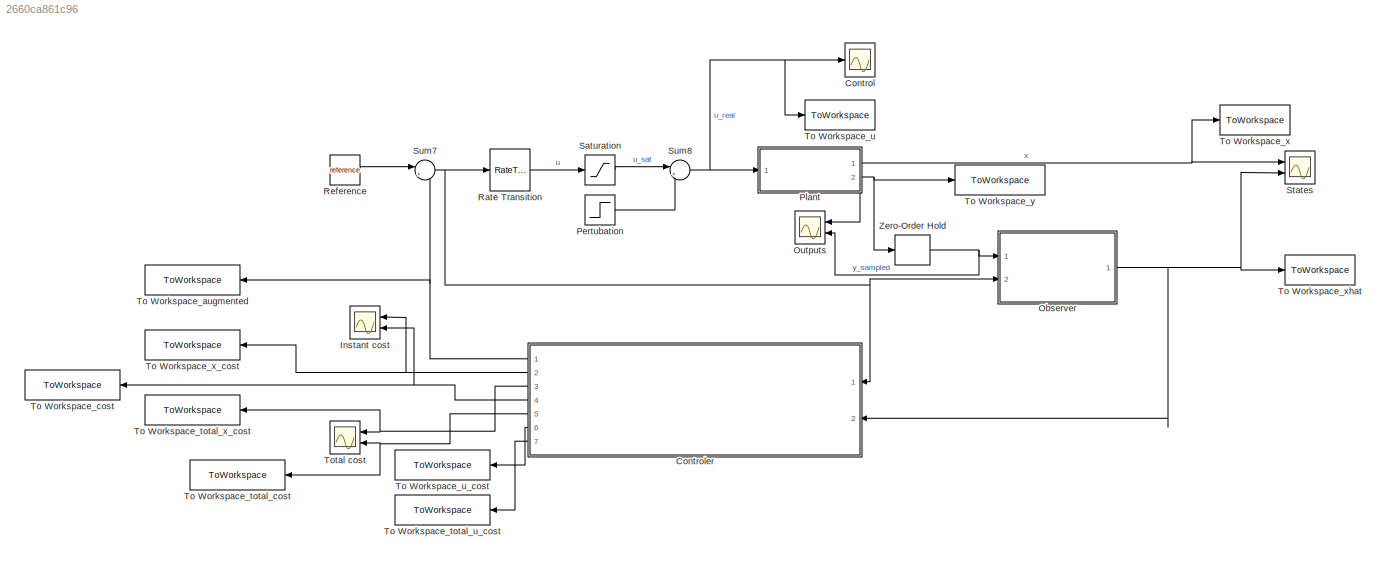
MODEL slx_2660ca861c96
KIND model
CONFIG AbsTol = auto
CONFIG EnableMultiTasking = off
CONFIG FixedStep = auto
CONFIG MaxStep = auto
CONFIG MinStep = auto
CONFIG RelTol = 1e-3
CONFIG SampleTimeConstraint = Unconstrained
CONFIG SolverName = VariableStepAuto
CONFIG StartTime = 0.0
CONFIG StopTime = 30
BLOCK [Scope] Control
  Floating = off
  NumInputPorts = 1
  Ports = [1]
  ScopeSpecificationString = Simulink.scopes.TimeScopeBlockCfg('CurrentConfiguration', extmgr.ConfigurationSet(extmgr.Configuration('Core','General UI',true),extmgr.Configuration('Core','Source UI',true),extmgr.Configuration('Sources','WiredSimulink',true,'DataLoggingVariableName','ScopeData1'),extmgr.Configuration('Visuals','Time Domain',true,'SerializedDisplays',{struct('MinYLimReal','-0.17351','MaxYLimReal','0.13159','YLab...<+1394ch>
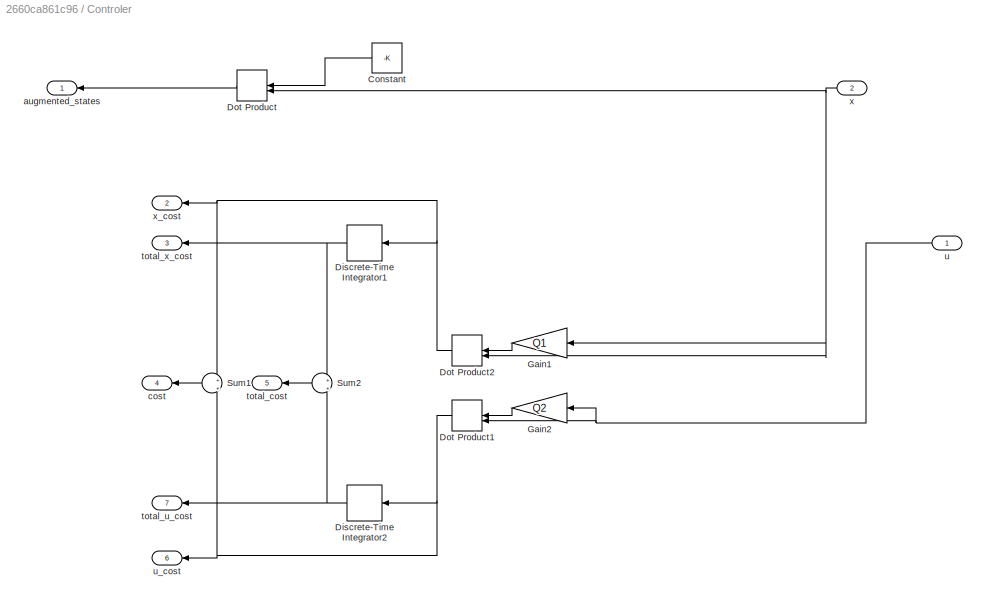
BLOCK [SubSystem] Controler
  Ports = [2, 7]
  RequestExecContextInheritance = off
BLOCK [Constant] Controler/Constant
  Value = -K
  VectorParams1D = off
BLOCK [DiscreteIntegrator] Controler/Discrete-Time Integrator1
  ICPrevOutput = DiscIntNeverNeededParam
  ICPrevScaledInput = DiscIntNeverNeededParam
  InitialConditionSetting = Auto
  Ports = [1, 1]
  SampleTime = -1
BLOCK [DiscreteIntegrator] Controler/Discrete-Time Integrator2
  ICPrevOutput = DiscIntNeverNeededParam
  ICPrevScaledInput = DiscIntNeverNeededParam
  InitialConditionSetting = Auto
  Ports = [1, 1]
  SampleTime = -1
BLOCK [DotProduct] Controler/Dot Product
  OutDataTypeStr = Inherit: Inherit via internal rule
BLOCK [DotProduct] Controler/Dot Product1
  OutDataTypeStr = Inherit: Inherit via internal rule
BLOCK [DotProduct] Controler/Dot Product2
  OutDataTypeStr = Inherit: Inherit via internal rule
BLOCK [Gain] Controler/Gain1
  Gain = Q1
  Multiplication = Matrix(K*u)
BLOCK [Gain] Controler/Gain2
  Gain = Q2
  Multiplication = Matrix(K*u)
BLOCK [Sum] Controler/Sum1
  Inputs = +|+
  Ports = [2, 1]
BLOCK [Sum] Controler/Sum2
  Inputs = +|+
  Ports = [2, 1]
BLOCK [Outport] Controler/augmented_states
BLOCK [Outport] Controler/cost
  Port = 4
BLOCK [Outport] Controler/total_cost
  Port = 5
BLOCK [Outport] Controler/total_u_cost
  Port = 7
BLOCK [Outport] Controler/total_x_cost
  Port = 3
BLOCK [Inport] Controler/u
BLOCK [Outport] Controler/u_cost
  Port = 6
BLOCK [Inport] Controler/x
  Port = 2
BLOCK [Outport] Controler/x_cost
  Port = 2
BLOCK [Scope] Instant cost
  Floating = off
  NumInputPorts = 2
  Ports = [2]
  ScopeSpecificationString = Simulink.scopes.TimeScopeBlockCfg('CurrentConfiguration', extmgr.ConfigurationSet(extmgr.Configuration('Core','General UI',true),extmgr.Configuration('Core','Source UI',true),extmgr.Configuration('Sources','WiredSimulink',true,'DataLoggingVariableName','ScopeData2'),extmgr.Configuration('Visuals','Time Domain',true,'SerializedDisplays',{struct('MinYLimReal','-0.83712','MaxYLimReal','7.5341','YLabe...<+1436ch>
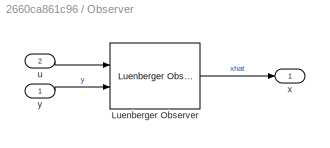
BLOCK [SubSystem] Observer
  Ports = [2, 1]
  RequestExecContextInheritance = off
BLOCK [Reference] Observer/Luenberger Observer  REF=eeLuenbergerObserver/Luenberger Observer
  Ports = [2, 1]
  SourceBlock = eeLuenbergerObserver/Luenberger Observer
  SourceProductBaseCode = PS
  SourceType = Luenberger Observer
BLOCK [Inport] Observer/u
  Port = 2
BLOCK [Outport] Observer/x
  IconDisplay = Signal name
BLOCK [Inport] Observer/y
BLOCK [Scope] Outputs
  Floating = off
  NumInputPorts = 2
  Ports = [2]
  ScopeSpecificationString = Simulink.scopes.TimeScopeBlockCfg('CurrentConfiguration', extmgr.ConfigurationSet(extmgr.Configuration('Core','General UI',true),extmgr.Configuration('Core','Source UI',true),extmgr.Configuration('Sources','WiredSimulink',true,'DataLoggingVariableName','ScopeData3'),extmgr.Configuration('Visuals','Time Domain',true,'SerializedDisplays',{struct('MinYLimReal','-7707.77698','MaxYLimReal','13845.61515...<+1476ch>
BLOCK [Step] Pertubation
  After = wind_final_value
  Before = wind_initial_value
  SampleTime = h_plant
  Time = wind_steptime
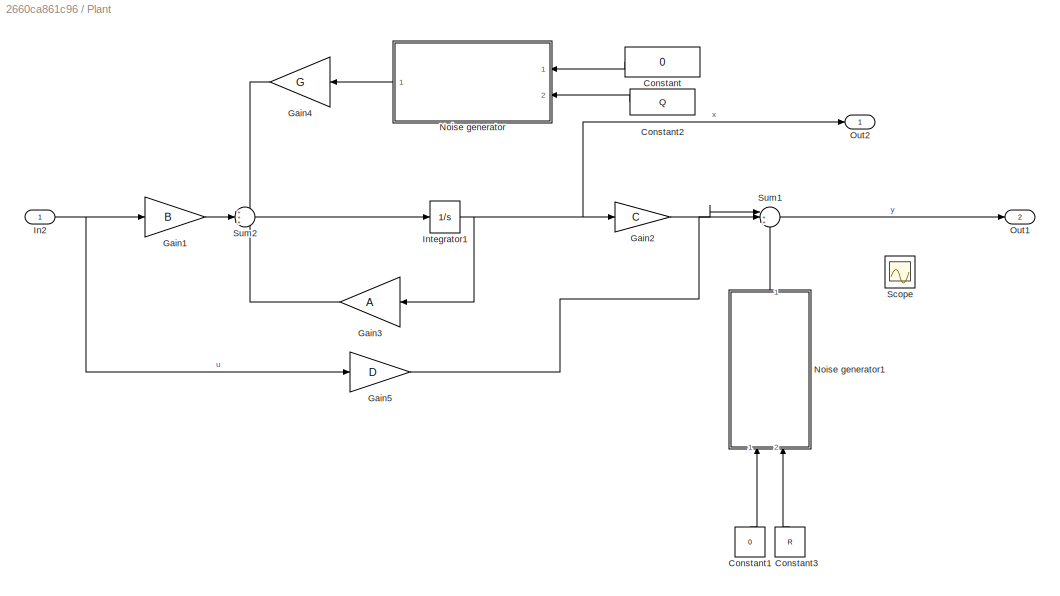
BLOCK [SubSystem] Plant
  Ports = [1, 2]
  RequestExecContextInheritance = off
BLOCK [Constant] Plant/Constant
  Value = 0
  VectorParams1D = off
BLOCK [Constant] Plant/Constant1
  NameLocation = left
  Value = 0
BLOCK [Constant] Plant/Constant2
  Value = Q
BLOCK [Constant] Plant/Constant3
  NameLocation = left
  Value = R
BLOCK [Gain] Plant/Gain1
  Gain = B
  Multiplication = Matrix(K*u) (u vector)
BLOCK [Gain] Plant/Gain2
  Gain = C
  Multiplication = Matrix(K*u) (u vector)
BLOCK [Gain] Plant/Gain3
  Gain = A
  Multiplication = Matrix(K*u) (u vector)
BLOCK [Gain] Plant/Gain4
  Gain = G
  Multiplication = Matrix(K*u) (u vector)
BLOCK [Gain] Plant/Gain5
  Gain = D
  Multiplication = Matrix(K*u) (u vector)
BLOCK [Inport] Plant/In2
  IconDisplay = Signal name
BLOCK [Integrator] Plant/Integrator1
  InitialCondition = x0
  Ports = [1, 1]
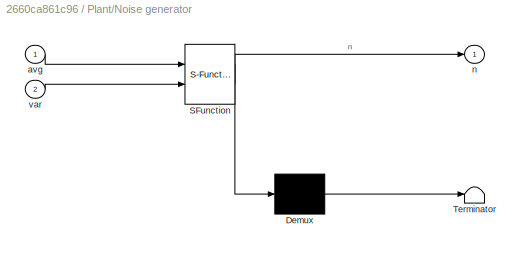
BLOCK [SubSystem] Plant/Noise generator
  ErrorFcn = Stateflow.Translate.translate
  PermitHierarchicalResolution = ExplicitOnly
  Ports = [2, 1]
  RequestExecContextInheritance = off
  SFBlockType = MATLAB Function
  TreatAsAtomicUnit = on
BLOCK [Demux] Plant/Noise generator/ Demux 
  Outputs = 1
  Ports = [1, 1]
BLOCK [S-Function] Plant/Noise generator/ SFunction 
  EnableBusSupport = on
  FunctionName = sf_sfun
  PortCounts = [2 2]
  Ports = [2, 2]
  SFcnIsStateOwnerBlock = off
  SFunctionDeploymentMode = off
  Tag = Stateflow S-Function 4
BLOCK [Terminator] Plant/Noise generator/ Terminator 
BLOCK [Inport] Plant/Noise generator/avg
BLOCK [Outport] Plant/Noise generator/n
BLOCK [Inport] Plant/Noise generator/var
  Port = 2
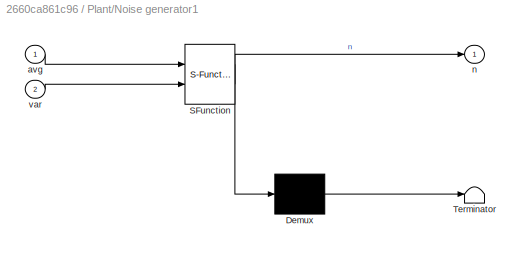
BLOCK [SubSystem] Plant/Noise generator1
  ErrorFcn = Stateflow.Translate.translate
  NameLocation = left
  PermitHierarchicalResolution = ExplicitOnly
  Ports = [2, 1]
  RequestExecContextInheritance = off
  SFBlockType = MATLAB Function
  TreatAsAtomicUnit = on
BLOCK [Demux] Plant/Noise generator1/ Demux 
  Outputs = 1
  Ports = [1, 1]
BLOCK [S-Function] Plant/Noise generator1/ SFunction 
  EnableBusSupport = on
  FunctionName = sf_sfun
  PortCounts = [2 2]
  Ports = [2, 2]
  SFcnIsStateOwnerBlock = off
  SFunctionDeploymentMode = off
  Tag = Stateflow S-Function 1
BLOCK [Terminator] Plant/Noise generator1/ Terminator 
BLOCK [Inport] Plant/Noise generator1/avg
BLOCK [Outport] Plant/Noise generator1/n
BLOCK [Inport] Plant/Noise generator1/var
  Port = 2
BLOCK [Outport] Plant/Out1
  IconDisplay = Signal name
  Port = 2
BLOCK [Outport] Plant/Out2
  IconDisplay = Signal name
BLOCK [Scope] Plant/Scope
  Floating = off
  NumInputPorts = 1
  Ports = [1]
  ScopeSpecificationString = Simulink.scopes.TimeScopeBlockCfg('CurrentConfiguration', extmgr.ConfigurationSet(extmgr.Configuration('Core','General UI',true),extmgr.Configuration('Core','Source UI',true),extmgr.Configuration('Sources','WiredSimulink',true,'DataLoggingVariableName','ScopeData1'),extmgr.Configuration('Visuals','Time Domain',true),extmgr.Configuration('Tools','Plot Navigation',true),extmgr.Configuration('Tools',...<+40ch>
BLOCK [Sum] Plant/Sum1
  Inputs = |+++
  Ports = [3, 1]
BLOCK [Sum] Plant/Sum2
  Inputs = +++
  Ports = [3, 1]
BLOCK [RateTransition] Rate Transition
  Integrity = off
  OutPortSampleTime = h_plant
  OutPortSampleTimeMultiple = 0.01
BLOCK [Constant] Reference
  SampleTime = h
  Value = reference
BLOCK [Saturate] Saturation
  LowerLimit = sat_min
  UpperLimit = sat_max
BLOCK [Scope] States
  Floating = off
  NumInputPorts = 2
  Ports = [2]
  ScopeSpecificationString = Simulink.scopes.TimeScopeBlockCfg('CurrentConfiguration', extmgr.ConfigurationSet(extmgr.Configuration('Core','General UI',true),extmgr.Configuration('Core','Source UI',true),extmgr.Configuration('Sources','WiredSimulink',true,'DataLoggingVariableName','ScopeData4'),extmgr.Configuration('Visuals','Time Domain',true,'SerializedDisplays',{struct('MinYLimReal','-4.731','MaxYLimReal','4.99322','YLabel...<+1462ch>
BLOCK [Sum] Sum7
  Inputs = |++
  Ports = [2, 1]
BLOCK [Sum] Sum8
  Inputs = |++
  Ports = [2, 1]
BLOCK [ToWorkspace] To Workspace_augmented
  FixptAsFi = on
  MaxDataPoints = inf
  Ports = [1]
  SampleTime = -1
  SaveFormat = Timeseries
  VariableName = augmented_states
BLOCK [ToWorkspace] To Workspace_cost
  FixptAsFi = on
  MaxDataPoints = inf
  Ports = [1]
  SampleTime = -1
  SaveFormat = Timeseries
  VariableName = cost
BLOCK [ToWorkspace] To Workspace_total_cost
  FixptAsFi = on
  MaxDataPoints = inf
  Ports = [1]
  SampleTime = -1
  SaveFormat = Timeseries
  VariableName = total_cost
BLOCK [ToWorkspace] To Workspace_total_u_cost
  FixptAsFi = on
  MaxDataPoints = inf
  Ports = [1]
  SampleTime = -1
  SaveFormat = Timeseries
  VariableName = total_u_cost
BLOCK [ToWorkspace] To Workspace_total_x_cost
  FixptAsFi = on
  MaxDataPoints = inf
  Ports = [1]
  SampleTime = -1
  SaveFormat = Timeseries
  VariableName = total_x_cost
BLOCK [ToWorkspace] To Workspace_u
  FixptAsFi = on
  MaxDataPoints = inf
  Ports = [1]
  SampleTime = -1
  SaveFormat = Timeseries
  VariableName = u
BLOCK [ToWorkspace] To Workspace_u_cost
  FixptAsFi = on
  MaxDataPoints = inf
  Ports = [1]
  SampleTime = -1
  SaveFormat = Timeseries
  VariableName = u_cost
BLOCK [ToWorkspace] To Workspace_x
  FixptAsFi = on
  MaxDataPoints = inf
  Ports = [1]
  SampleTime = -1
  SaveFormat = Timeseries
  VariableName = x
BLOCK [ToWorkspace] To Workspace_x_cost
  FixptAsFi = on
  MaxDataPoints = inf
  Ports = [1]
  SampleTime = -1
  SaveFormat = Timeseries
  VariableName = x_cost
BLOCK [ToWorkspace] To Workspace_xhat
  FixptAsFi = on
  MaxDataPoints = inf
  Ports = [1]
  SampleTime = -1
  SaveFormat = Timeseries
  VariableName = xhat
BLOCK [ToWorkspace] To Workspace_y
  FixptAsFi = on
  MaxDataPoints = inf
  Ports = [1]
  SampleTime = -1
  SaveFormat = Timeseries
  VariableName = y
BLOCK [Scope] Total cost
  Floating = off
  NumInputPorts = 2
  Ports = [2]
  ScopeSpecificationString = Simulink.scopes.TimeScopeBlockCfg('CurrentConfiguration', extmgr.ConfigurationSet(extmgr.Configuration('Core','General UI',true),extmgr.Configuration('Core','Source UI',true),extmgr.Configuration('Sources','WiredSimulink',true,'DataLoggingVariableName','ScopeData5'),extmgr.Configuration('Visuals','Time Domain',true,'SerializedDisplays',{struct('MinYLimReal','-1.77638','MaxYLimReal','15.98739','YLa...<+1410ch>
BLOCK [ZeroOrderHold] Zero-Order Hold
  SampleTime = h
LINE Controler/Constant:1 -> Controler/Dot Product:1
NET Controler/Discrete-Time Integrator1:1 -> Controler/Sum2:1, Controler/total_x_cost:1
NET Controler/Discrete-Time Integrator2:1 -> Controler/Sum2:2, Controler/total_u_cost:1
NET Controler/Dot Product1:1 -> Controler/Discrete-Time Integrator2:1, Controler/Sum1:2, Controler/u_cost:1
NET Controler/Dot Product2:1 -> Controler/Discrete-Time Integrator1:1, Controler/Sum1:1, Controler/x_cost:1
LINE Controler/Dot Product:1 -> Controler/augmented_states:1
LINE Controler/Gain1:1 -> Controler/Dot Product2:1
LINE Controler/Gain2:1 -> Controler/Dot Product1:1
LINE Controler/Sum1:1 -> Controler/cost:1
LINE Controler/Sum2:1 -> Controler/total_cost:1
NET Controler/u:1 -> Controler/Dot Product1:2, Controler/Gain2:1
NET Controler/x:1 -> Controler/Dot Product2:2, Controler/Dot Product:2, Controler/Gain1:1
NET Controler:1 -> Sum7:2, To Workspace_augmented:1
NET Controler:2 -> Instant cost:1, To Workspace_x_cost:1
NET Controler:3 -> To Workspace_total_x_cost:1, Total cost:1
NET Controler:4 -> Instant cost:2, To Workspace_cost:1
NET Controler:5 -> To Workspace_total_cost:1, Total cost:2
LINE Controler:6 -> To Workspace_u_cost:1
LINE Controler:7 -> To Workspace_total_u_cost:1
LINE Observer/Luenberger Observer:1 -> Observer/x:1
LINE Observer/u:1 -> Observer/Luenberger Observer:1
LINE Observer/y:1 -> Observer/Luenberger Observer:2
NET Observer:1 -> Controler:2, States:2, To Workspace_xhat:1
LINE Pertubation:1 -> Sum8:2
LINE Plant/Constant1:1 -> Plant/Noise generator1:1
LINE Plant/Constant2:1 -> Plant/Noise generator:2
LINE Plant/Constant3:1 -> Plant/Noise generator1:2
LINE Plant/Constant:1 -> Plant/Noise generator:1
LINE Plant/Gain1:1 -> Plant/Sum2:2
LINE Plant/Gain2:1 -> Plant/Sum1:1
LINE Plant/Gain3:1 -> Plant/Sum2:3
LINE Plant/Gain4:1 -> Plant/Sum2:1
LINE Plant/Gain5:1 -> Plant/Sum1:2
NET Plant/In2:1 -> Plant/Gain1:1, Plant/Gain5:1
NET Plant/Integrator1:1 -> Plant/Gain2:1, Plant/Gain3:1, Plant/Out2:1
LINE Plant/Noise generator1:1 -> Plant/Sum1:3
LINE Plant/Noise generator:1 -> Plant/Gain4:1
LINE Plant/Sum1:1 -> Plant/Out1:1
LINE Plant/Sum2:1 -> Plant/Integrator1:1
NET Plant:1 -> States:1, To Workspace_x:1
NET Plant:2 -> Outputs:1, To Workspace_y:1, Zero-Order Hold:1
LINE Rate Transition:1 -> Saturation:1
LINE Reference:1 -> Sum7:1
LINE Saturation:1 -> Sum8:1
NET Sum7:1 -> Controler:1, Observer:2, Rate Transition:1
NET Sum8:1 -> Control:1, Plant:1, To Workspace_u:1
NET Zero-Order Hold:1 -> Observer:1, Outputs:2
note: NET lines group one-source signal fan-out (src -> all destinations, sorted); 1:1 wires keep LINE
CHART Plant/Noise generator states=1 transitions=1
  STATE_LABEL 'eML_blk_kernel()'
  STATE_LABEL 'SCRIPT:\nfunction n = generate_gaussian_noise(avg, var)\nn = avg + var*randn(length(var), 1);'
CHART Plant/Noise generator1 states=1 transitions=1
  STATE_LABEL 'eML_blk_kernel()'
  STATE_LABEL 'SCRIPT:\nfunction n = generate_gaussian_noise(avg, var)\nn = avg + var*randn(length(var), 1);'
CHART  states=0 transitions=0
CHART  states=0 transitions=0
